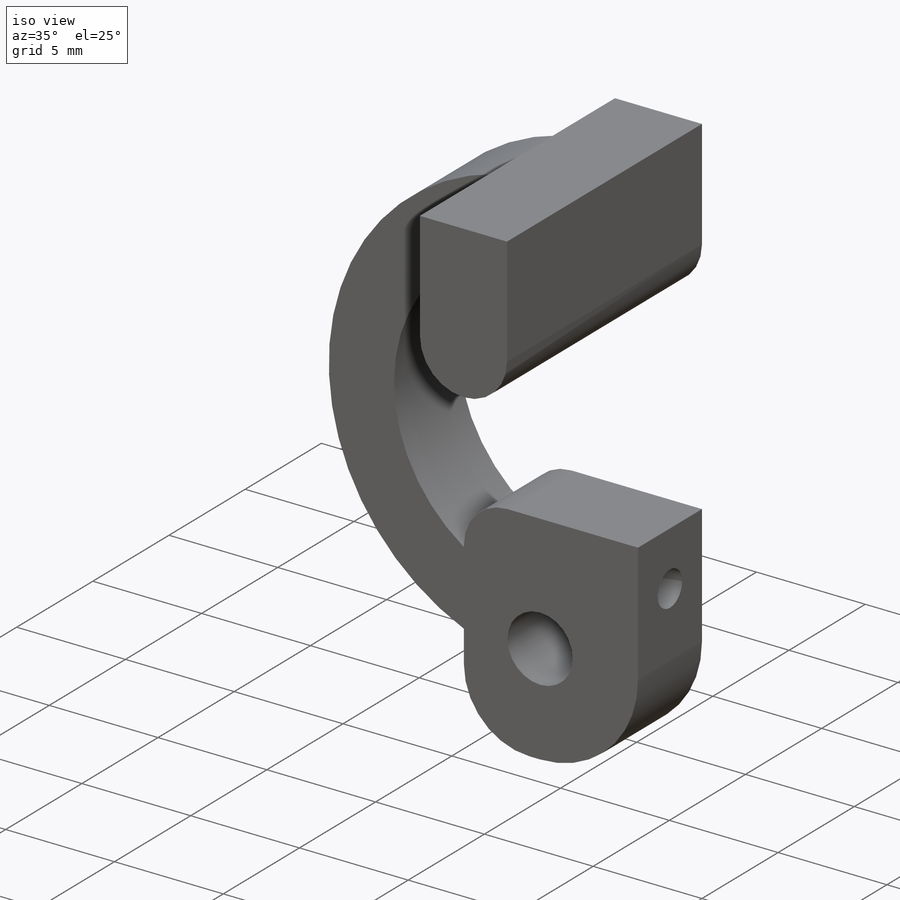
[diagram: iso view]
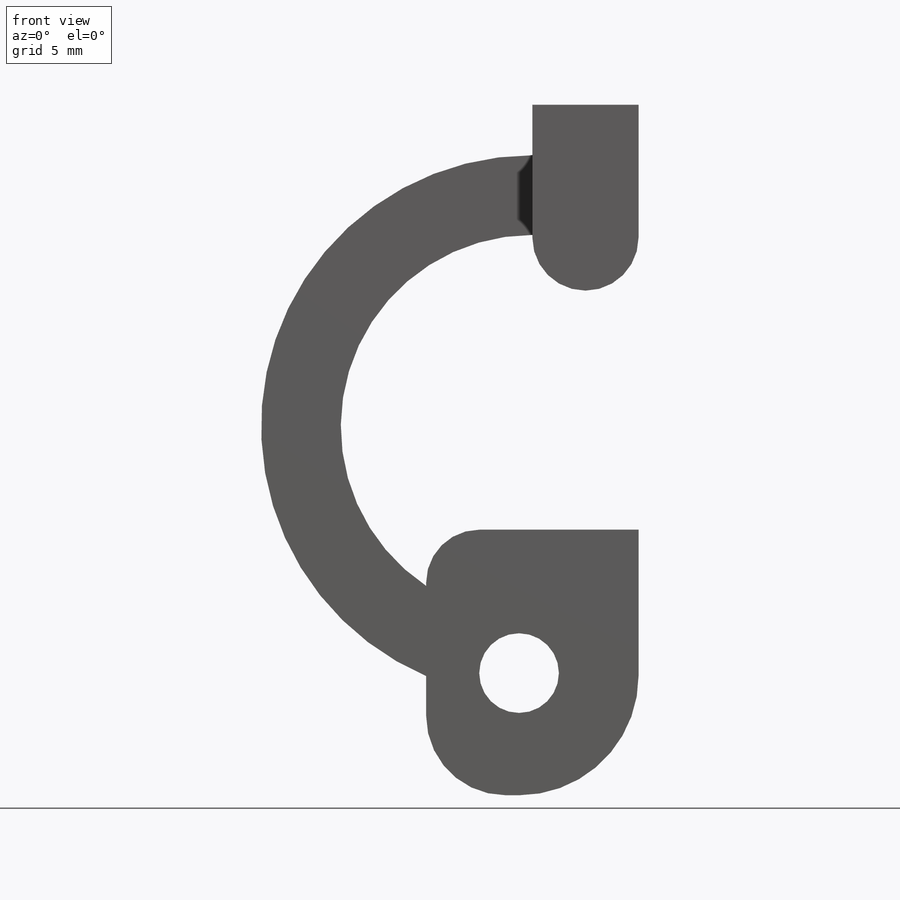
[diagram: front view]
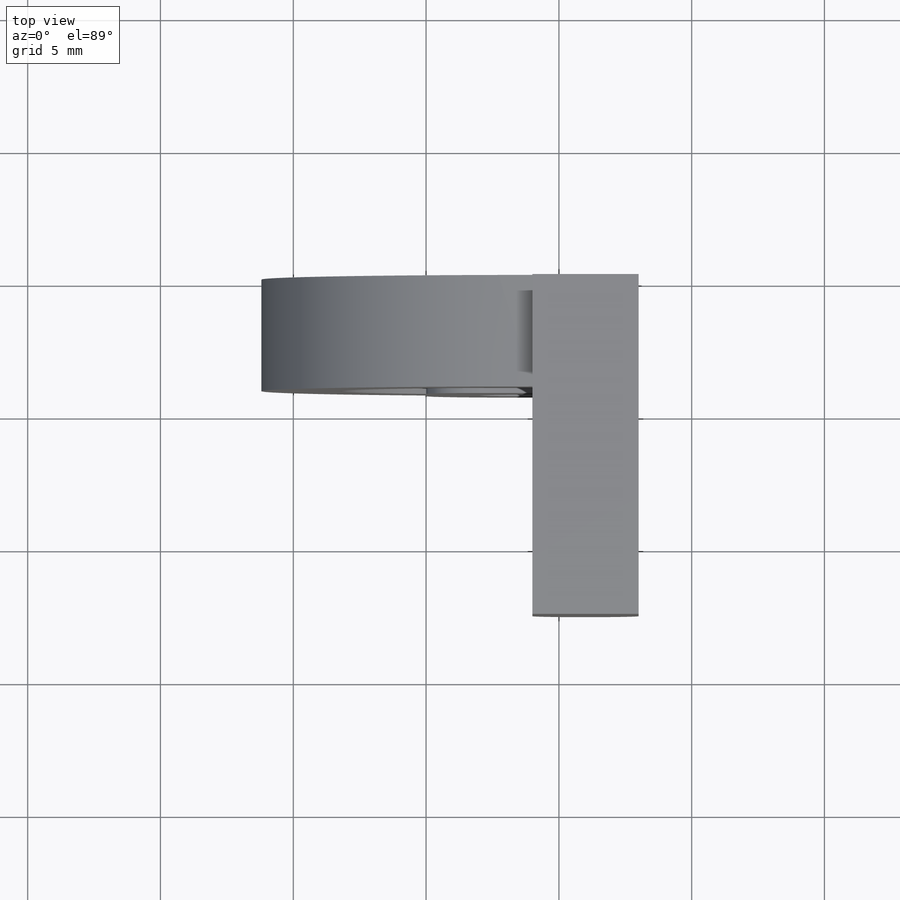
[diagram: top view]
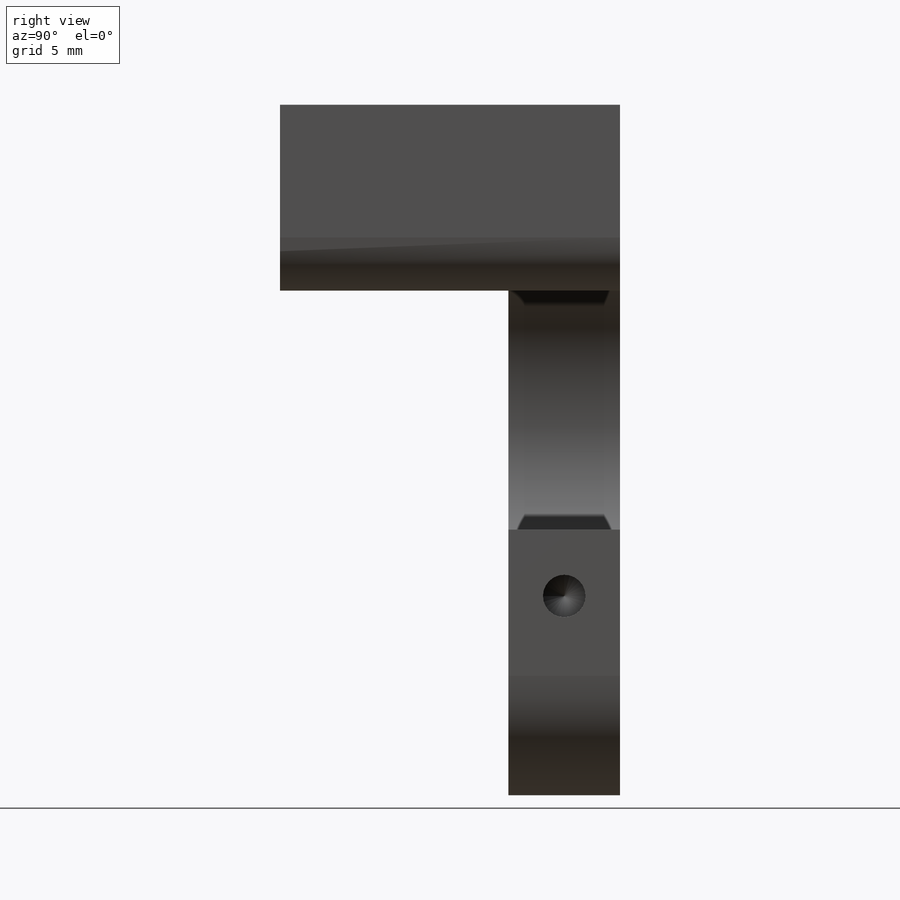
[diagram: right view]
SOLIDWORKS PART (.sldprt)
format: sldprt  version: not decoded by parser v0  size: 276,480 bytes
history: native  units: mm
features: sketch x7, fillet x4, extrude x2, hole x2, material x1 (+11 scaffold rows collapsed)
feature tree (27):
  scaffold x11  (default folders/planes/origin — collapsed)
  material  "Material <not specified>"
  sketch  "Sketch1"  dims[c1.D17=4.0mm c1.D18=~0.999741mm c1.D19=3.0mm c1.D6=18.0mm c1.D7=~20.422976mm c1.D1=4.2mm c1.D2=13.0mm c1.D3=5.0mm c1.D4=5.0mm c1.D5=25.0mm c2.D6=25.0mm c2.D7=5.0mm c2.D3=20.0mm c2.D4=22.0mm c2.D5=22.0mm c3.D6=5.5mm c3.D7=5.5mm c3.D8=5.5mm c3.D9=5.5mm c3.D1=8.0mm c3.D2=8.0mm c3.D3=13.0mm c3.D4=9.0mm c3.D5=8.0mm c4.D6=3.0mm c4.D7=4.0mm c4.D8=10.0mm c4.D9=20.0mm c4.D10=0.0mm c4.D11=6.5mm c4.D12=5.0mm c4.D13=2.5mm c4.D14=2.5mm c4.D15=2.5mm c4.D16=2.5mm c4.D18=4.5mm c4.D20=~3.585786mm c4.D1=8.0mm c4.D2=26.0mm c4.D3=4.0mm c4.D4=7.0mm c4.D5=10.0mm c5.D6=3.0mm]
  extrude  "Boss-Extrude1"  Depth=4.2mm
  sketch  "Sketch2"
  extrude  "Boss-Extrude2"  Depth=8.6mm
  fillet  "Fillet1"  Radius=4.5mm
  hole  "Hole1"  Diameter=3mm Depth=100mm
  sketch  "3DSketch1"  dims[D1=4.5mm D2=4.6mm]
  sketch  "Sketch3"  dims[Diameter=3.0mm Depth=100.0mm]
  fillet  "Fillet3"  Radius=2mm
  fillet  "Fillet4"  Radius=2mm
  sketch  "Sketch4"  dims[c1.D4=2.1mm c1.D5=2.1mm c1.D6=2.1mm c1.D1=~2.630937mm c1.D2=0.0mm c1.D3=6.8mm c2.D6=3.0mm]
  fillet  "Fillet5"  Radius=3mm
  hole  "Tap Drill for M2x0.4 Tap1"  Diameter=1.6mm Depth=1.98mm
  sketch  "3DSketch2"  dims[D1=2.5mm D2=2.1mm]
  sketch  "Sketch6"  dims[hole-wizard template sketch: 47 standard entries collapsed; hole parameters kept: c15.Hole Depth=1.98mm c15.D3=~14.816244mm c15.Drill Angle=118.0deg]
decode coverage: 14 of 15 modeling features carry decoded parameters
note: ~ marks probable driven/reference dimensions
note: suppression state not decoded; provenance and decode notes live in map.json
